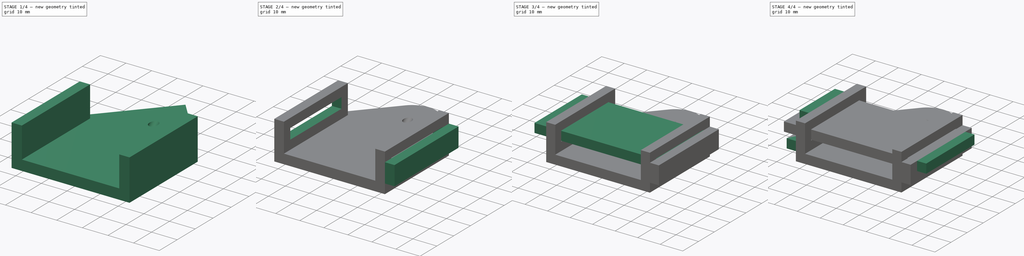
[diagram: build sequence overview — one tinted view per stage of 4, left to right]
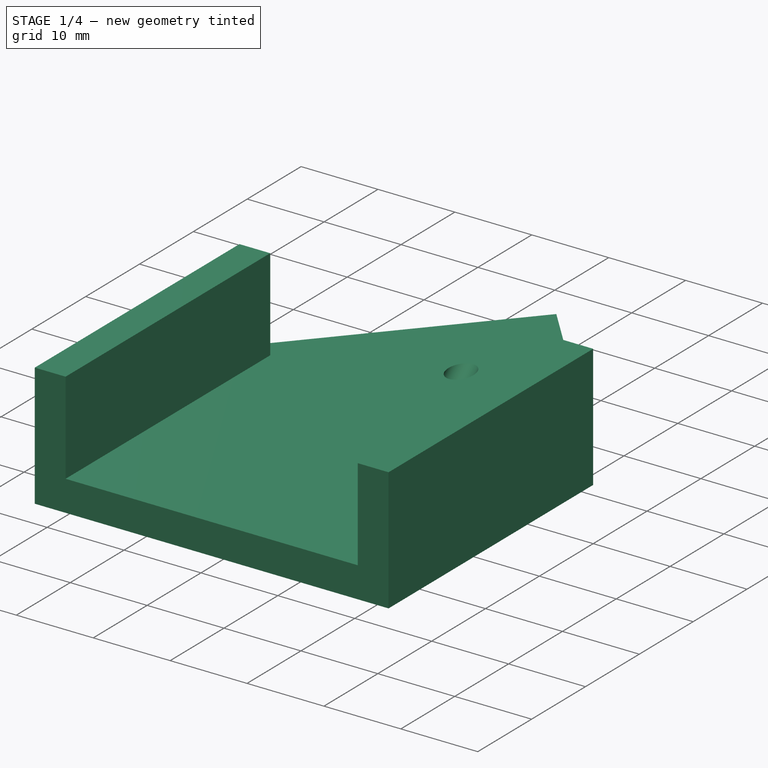
[diagram: stage 1 of 4 — iso view after this stage's code; geometry added in this stage tinted green]
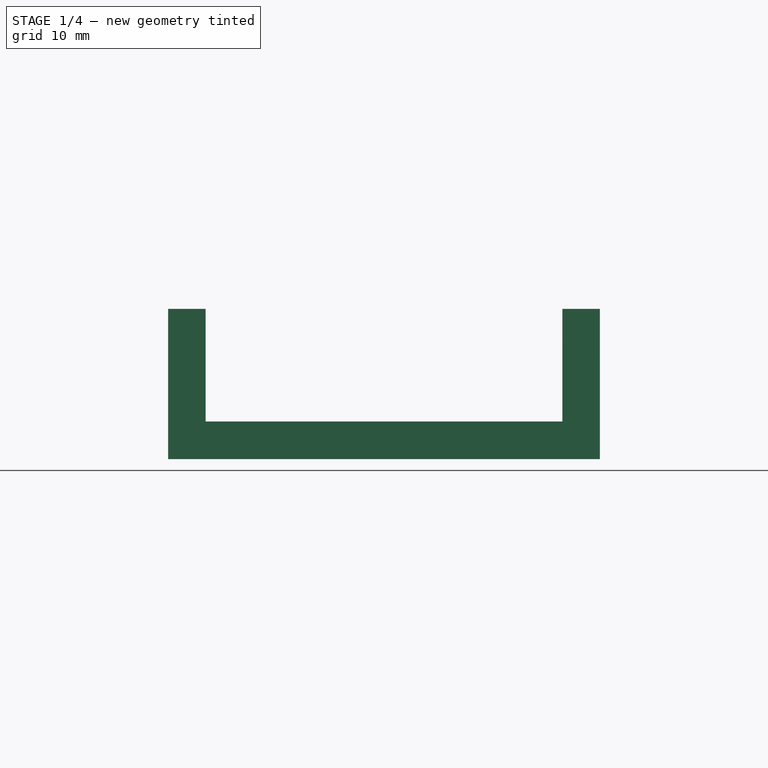
[diagram: stage 1 of 4 — front view after this stage's code; geometry added in this stage tinted green]
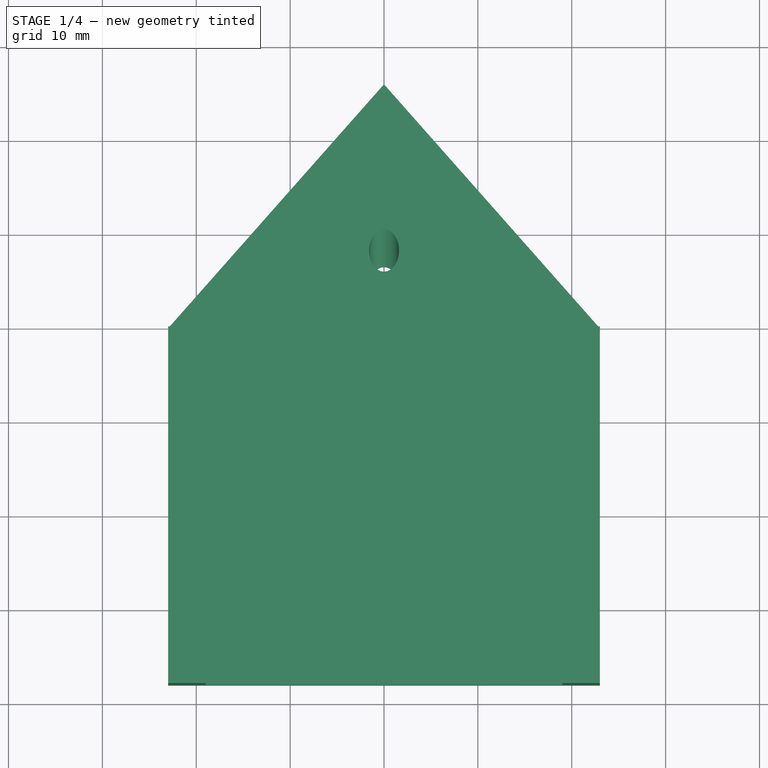
[diagram: stage 1 of 4 — top view after this stage's code; geometry added in this stage tinted green]
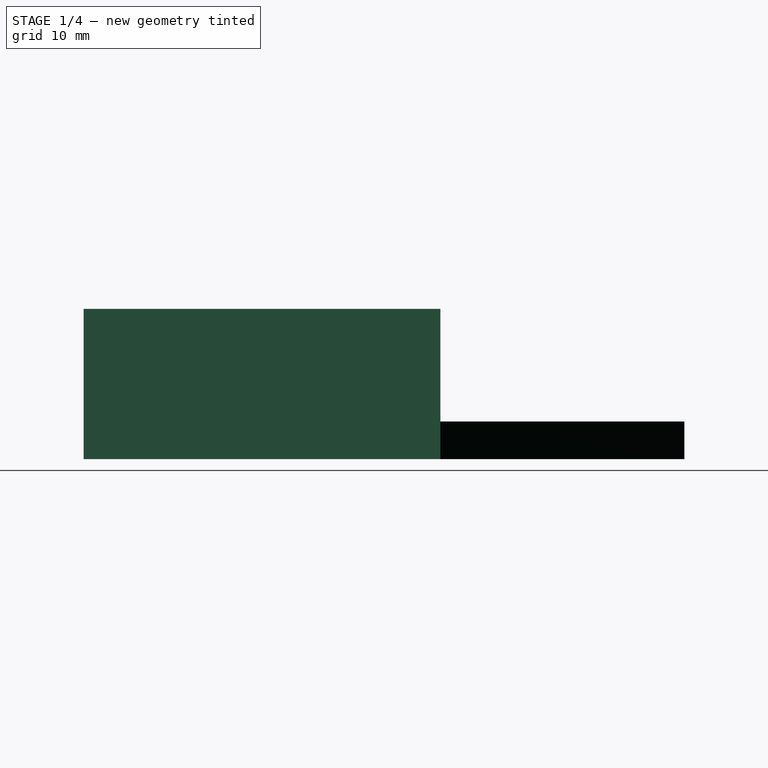
[diagram: stage 1 of 4 — right view after this stage's code; geometry added in this stage tinted green]
FCSTD DOCUMENT  (FreeCAD 0.20R29177 (Git))
Label: mom_holder_mount
License: All rights reserved
LicenseURL: http://en.wikipedia.org/wiki/All_rights_reserved
objects: Sketcher::SketchObject×10, PartDesign::Pad×7, PartDesign::Pocket×3, PartDesign::Body×3, Spreadsheet::Sheet×1, PartDesign::Fillet×1
note: 35 computed .brp shape members not serialized (recipe doc carries the construction recipe); baked Part::Feature solids carry a one-line shape summary decoded from their .brp

FEATURE [Sketcher::SketchObject] Sketch  label="Base Body Pad Sketch"
  FullyConstrained = true
  MapMode = 5
  Support = -> [XY_Plane]
  expr: Constraints[25] = <<$params>>.hook_width
  expr: Constraints[26] = <<$params>>.padding
  expr: Constraints[36] = <<$params>>.padding
  expr: Constraints[38] = <<$params>>.hook_length
  sketch-geometry (14):
    g0: LineSegment StartX=-23 StartY=-38 StartZ=0 EndX=-23 EndY=0 EndZ=0
    g1: LineSegment StartX=-23 StartY=0 StartZ=0 EndX=0 EndY=26 EndZ=0
    g2: LineSegment StartX=0 StartY=26 StartZ=0 EndX=23 EndY=0 EndZ=0
    g3: LineSegment StartX=0 StartY=26 StartZ=0 EndX=0 EndY=0 EndZ=0
    g4: LineSegment StartX=-23 StartY=0 StartZ=0 EndX=0 EndY=0 EndZ=0
    g5: LineSegment StartX=0 StartY=0 StartZ=0 EndX=23 EndY=0 EndZ=0
    g6: LineSegment StartX=-23 StartY=-4 StartZ=0 EndX=23 EndY=-4 EndZ=0
    g7: LineSegment StartX=-23 StartY=-34 StartZ=0 EndX=23 EndY=-34 EndZ=0
    g8: LineSegment StartX=23 StartY=0 StartZ=0 EndX=23 EndY=-4 EndZ=0
    g9: LineSegment StartX=23 StartY=-4 StartZ=0 EndX=23 EndY=-34 EndZ=0
    g10: LineSegment StartX=23 StartY=-34 StartZ=0 EndX=23 EndY=-38 EndZ=0
    g11: LineSegment StartX=-23 StartY=-38 StartZ=0 EndX=-19 EndY=-38 EndZ=0
    g12: LineSegment StartX=23 StartY=-38 StartZ=0 EndX=19 EndY=-38 EndZ=0
    g13: LineSegment StartX=-19 StartY=-38 StartZ=0 EndX=19 EndY=-38 EndZ=0
  constraints (39):
    c: Vertical(g0)
    c: Coincident(g2,g1)
    c: Coincident(g3,g1)
    c: Vertical(g3)
    c: Coincident(g4,g0)
    c: Coincident(g4,g3)
    c: Horizontal(g4)
    c: Coincident(g5,g3)
    c: Horizontal(g5)
    c: Coincident(g0,g1)
    c: Equal(g5,g4)
    c: Coincident(g3,g-1)
    c: PointOnObject(g6,g0)
    c: Horizontal(g6)
    c: PointOnObject(g7,g0)
    c: Horizontal(g7)
    c: Coincident(g8,g2)
    c: Coincident(g8,g6)
    c: Vertical(g8)
    c: Coincident(g9,g8)
    c: Coincident(g9,g7)
    c: Vertical(g9)
    c: Coincident(g10,g9)
    c: Equal(g8,g10)
    c: DistanceY(g3,g3) = 26
    c: DistanceY(g9,g9) = 30
    c: DistanceY(g8,g8) = 4
    c: Coincident(g2,g5)
    c: Vertical(g10)
    c: Coincident(g11,g0)
    c: Horizontal(g11)
    c: Coincident(g12,g10)
    c: Horizontal(g12)
    c: Coincident(g13,g11)
    c: Coincident(g13,g12)
    c: Horizontal(g13)
    c: DistanceX(g11,g11) = 4
    c: Equal(g12,g11)
    c: DistanceX(g13,g13) = 38
FEATURE [PartDesign::Pad] Pad  label="Base Body Pad"
  Direction = (0,0,1)
  Length = 4
  Length2 = 10
  Profile = -> Sketch
  ReferenceAxis = -> Sketch [N_Axis]
  Type = 0
  expr: Length = <<$params>>.padding
FEATURE [Spreadsheet::Sheet] Spreadsheet  label="$params"
  cells = A1=name; B1=value; A2=hook_width; B2(hook_width)=30; A3=hook_length; B3(hook_length)=38; A4=padding; B4(padding)=4
FEATURE [Sketcher::SketchObject] Sketch001  label="Base Body Nail Hole Sketch"
  AttachmentOffset = pos=(0,0.979185,10.364) rot=(1,0,0;-0.785398rad)
  ExternalGeometry = -> [Pad]
  FullyConstrained = true
  MapMode = 5
  Placement = pos=(0,0.979185,14.364) rot=(1,0,0;5.49779rad)
  Support = -> [Pad]
  sketch-geometry (2):
    g0: LineSegment StartX=0 StartY=25.0208 StartZ=0 EndX=0 EndY=0 EndZ=0
    g1: Circle CenterX=0 CenterY=12.5104 CenterZ=0 NormalX=0 NormalY=0 NormalZ=1 AngleXU=0 Radius=1.6
  constraints (4):
    c: Coincident(g0,g-3)
    c: Coincident(g0,g-1)
    c: Symmetric(g0,g0,g1)
    c: Diameter(g1) = 3.2
FEATURE [PartDesign::Pocket] Pocket  label="Base Body Nail Hole"
  BaseFeature = -> Pad
  Direction = (0,-0.707107,-0.707107)
  Length = 5
  Length2 = 5
  Profile = -> Sketch001
  ReferenceAxis = -> Sketch001 [N_Axis]
  Type = 1
FEATURE [Sketcher::SketchObject] Sketch002  label="Base Body Ext Pad Skletch"
  ExternalGeometry = -> [Pad]
  FullyConstrained = true
  MapMode = 5
  Placement = pos=(0,0,4) rot=(0,0,1;0rad)
  Support = -> [Pad]
  expr: Constraints[26] = <<$params>>.padding
  sketch-geometry (11):
    g0: LineSegment StartX=-23 StartY=0 StartZ=0 EndX=-19 EndY=0 EndZ=0
    g1: LineSegment StartX=-19 StartY=0 StartZ=0 EndX=-19 EndY=-38 EndZ=0
    g2: LineSegment StartX=-19 StartY=-38 StartZ=0 EndX=-23 EndY=-38 EndZ=0
    g3: LineSegment StartX=-23 StartY=-38 StartZ=0 EndX=-23 EndY=0 EndZ=0
    g4: LineSegment StartX=23 StartY=-38 StartZ=0 EndX=19 EndY=-38 EndZ=0
    g5: LineSegment StartX=19 StartY=-38 StartZ=0 EndX=19 EndY=0 EndZ=0
    g6: LineSegment StartX=19 StartY=0 StartZ=0 EndX=23 EndY=0 EndZ=0
    g7: LineSegment StartX=23 StartY=0 StartZ=0 EndX=23 EndY=-38 EndZ=0
    g8: GeomPoint X=-19 Y=0 Z=0
    g9: LineSegment StartX=-19 StartY=0 StartZ=0 EndX=19 EndY=0 EndZ=0
    g10: LineSegment StartX=19 StartY=-38 StartZ=0 EndX=-19 EndY=-38 EndZ=0
  constraints (27):
    c: Coincident(g0,g1)
    c: Coincident(g1,g2)
    c: Coincident(g2,g3)
    c: Coincident(g3,g0)
    c: Horizontal(g0)
    c: Horizontal(g2)
    c: Vertical(g1)
    c: Vertical(g3)
    c: Coincident(g0,g-3)
    c: Coincident(g4,g5)
    c: Coincident(g5,g6)
    c: Coincident(g6,g7)
    c: Coincident(g7,g4)
    c: Horizontal(g4)
    c: Horizontal(g6)
    c: Vertical(g5)
    c: Vertical(g7)
    c: Coincident(g4,g-4)
    c: Coincident(g8,g0)
    c: Coincident(g9,g0)
    c: Coincident(g9,g5)
    c: Horizontal(g9)
    c: Coincident(g10,g4)
    c: Coincident(g10,g1)
    c: Horizontal(g10)
    c: Equal(g2,g4)
    c: DistanceX(g0,g0) = 4
FEATURE [PartDesign::Pad] Pad001  label="Base Body Ext Pad"
  BaseFeature = -> Pocket
  Direction = (0,0,1)
  Length = 12
  Length2 = 10
  Profile = -> Sketch002
  ReferenceAxis = -> Sketch002 [N_Axis]
  Type = 0
  expr: Length = <<$params>>.padding * 3
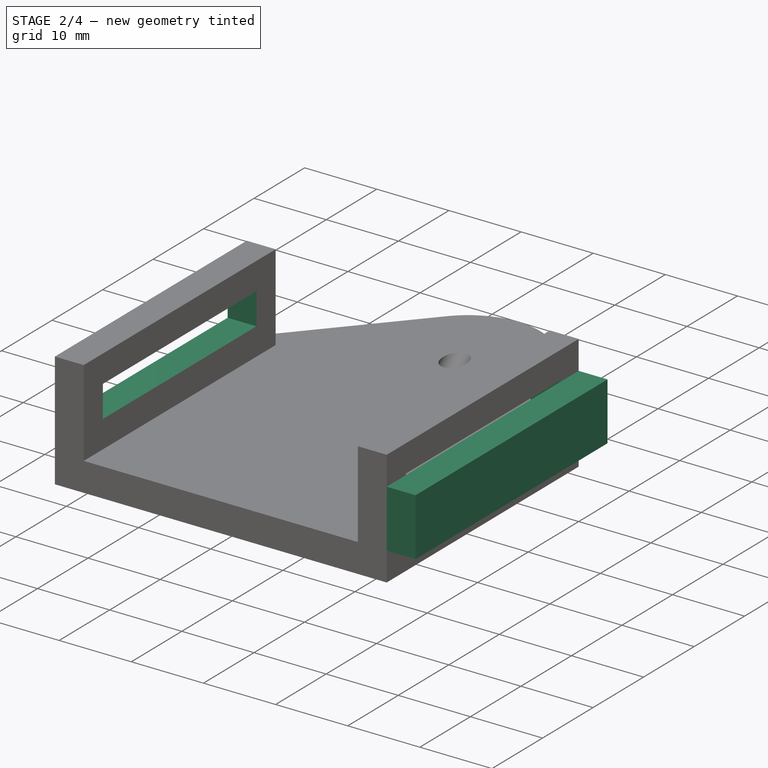
[diagram: stage 2 of 4 — iso view after this stage's code; geometry added in this stage tinted green]
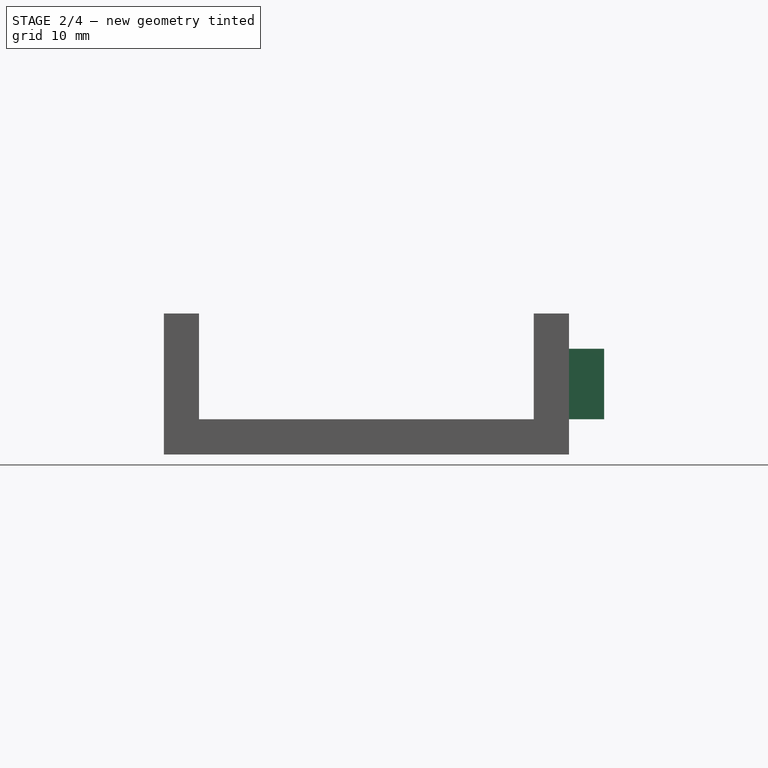
[diagram: stage 2 of 4 — front view after this stage's code; geometry added in this stage tinted green]
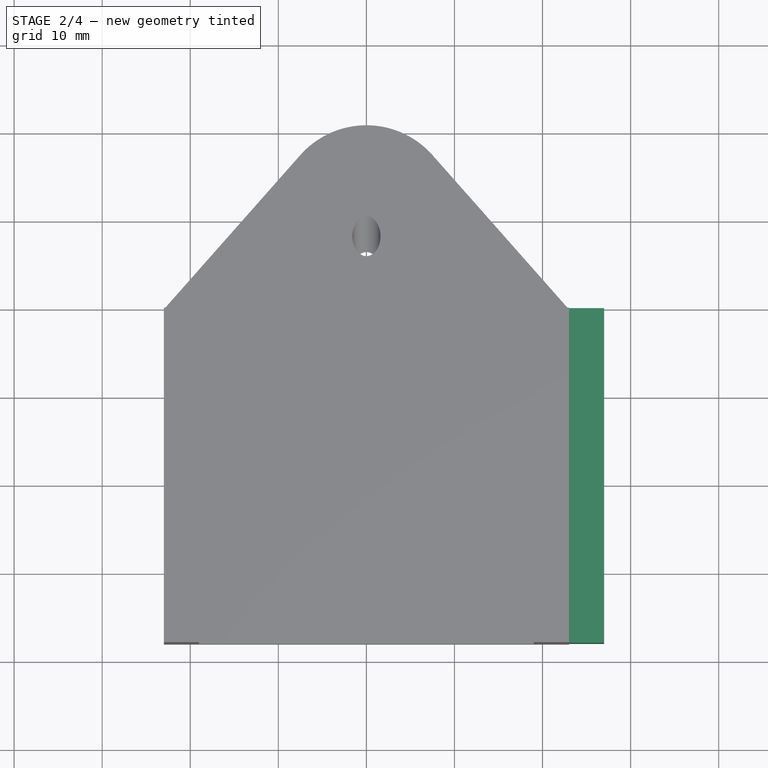
[diagram: stage 2 of 4 — top view after this stage's code; geometry added in this stage tinted green]
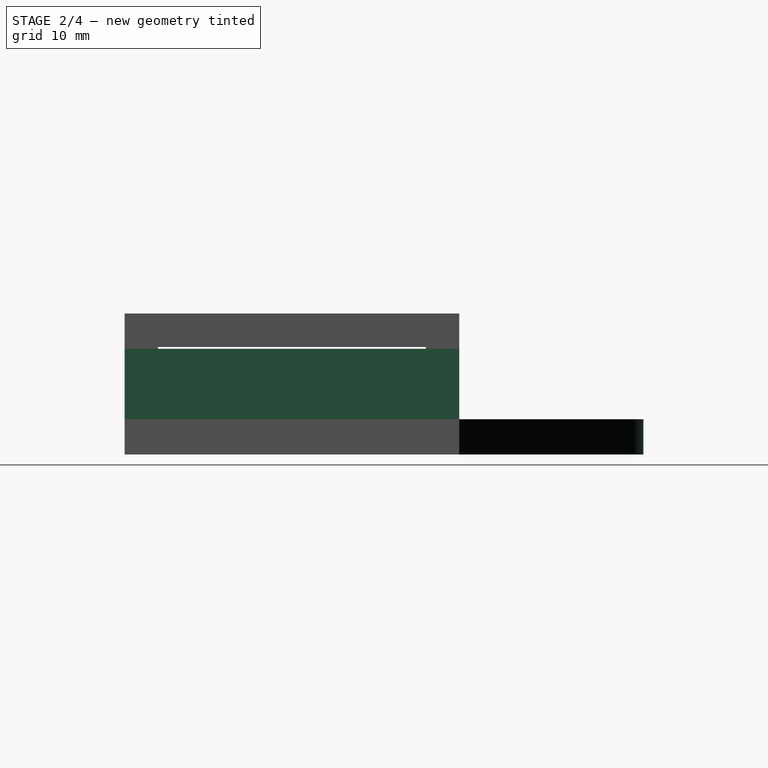
[diagram: stage 2 of 4 — right view after this stage's code; geometry added in this stage tinted green]
FEATURE [Sketcher::SketchObject] Sketch003  label="Basy Body Ext Cut-Thru Sketch"
  ExternalGeometry = -> [Pad001]
  FullyConstrained = true
  MapMode = 5
  Placement = pos=(-23,0,0) rot=(0.57735,-0.57735,-0.57735;2.0944rad)
  Support = -> [Pad001]
  expr: Constraints[31] = <<$params>>.padding - 0.2
  sketch-geometry (12):
    g0: LineSegment StartX=3.8 StartY=12.2 StartZ=0 EndX=34.2 EndY=12.2 EndZ=0
    g1: LineSegment StartX=34.2 StartY=12.2 StartZ=0 EndX=34.2 EndY=7.8 EndZ=0
    g2: LineSegment StartX=34.2 StartY=7.8 StartZ=0 EndX=3.8 EndY=7.8 EndZ=0
    g3: LineSegment StartX=3.8 StartY=7.8 StartZ=0 EndX=3.8 EndY=12.2 EndZ=0
    g4: LineSegment StartX=3.8 StartY=12.2 StartZ=0 EndX=0 EndY=12.2 EndZ=0
    g5: LineSegment StartX=0 StartY=12.2 StartZ=0 EndX=0 EndY=16 EndZ=0
    g6: LineSegment StartX=0 StartY=16 StartZ=0 EndX=3.8 EndY=16 EndZ=0
    g7: LineSegment StartX=3.8 StartY=16 StartZ=0 EndX=3.8 EndY=12.2 EndZ=0
    g8: LineSegment StartX=34.2 StartY=7.8 StartZ=0 EndX=38 EndY=7.8 EndZ=0
    g9: LineSegment StartX=38 StartY=7.8 StartZ=0 EndX=38 EndY=4 EndZ=0
    g10: LineSegment StartX=38 StartY=4 StartZ=0 EndX=34.2 EndY=4 EndZ=0
    g11: LineSegment StartX=34.2 StartY=4 StartZ=0 EndX=34.2 EndY=7.8 EndZ=0
  constraints (32):
    c: Coincident(g0,g1)
    c: Coincident(g1,g2)
    c: Coincident(g2,g3)
    c: Coincident(g3,g0)
    c: Horizontal(g0)
    c: Horizontal(g2)
    c: Vertical(g1)
    c: Vertical(g3)
    c: Coincident(g4,g5)
    c: Coincident(g5,g6)
    c: Coincident(g6,g7)
    c: Coincident(g7,g4)
    c: Horizontal(g4)
    c: Horizontal(g6)
    c: Vertical(g5)
    c: Vertical(g7)
    c: Coincident(g4,g0)
    c: Coincident(g5,g-3)
    c: Coincident(g8,g9)
    c: Coincident(g9,g10)
    c: Coincident(g10,g11)
    c: Coincident(g11,g8)
    c: Horizontal(g8)
    c: Horizontal(g10)
    c: Vertical(g9)
    c: Vertical(g11)
    c: Coincident(g8,g1)
    c: Coincident(g9,g-4)
    c: Equal(g7,g6)
    c: Equal(g6,g11)
    c: Equal(g11,g10)
    c: DistanceY(g5,g5) = 3.8
FEATURE [PartDesign::Pocket] Pocket001  label="Basy Body Ext Cut-Thru"
  BaseFeature = -> Pad001
  Direction = (1,0,0)
  Length = 5
  Length2 = 5
  Profile = -> Sketch003
  ReferenceAxis = -> Sketch003 [N_Axis]
  Type = 1
FEATURE [Sketcher::SketchObject] Sketch004  label="Pin Base Sketch"
  FullyConstrained = true
  MapMode = 5
  Support = -> [XY_Plane001]
  expr: Constraints[10] = <<$params>>.padding
  expr: Constraints[11] = <<$params>>.hook_length / 2 + <<$params>>.padding
  expr: Constraints[9] = <<$params>>.hook_width + <<$params>>.padding * 2
  sketch-geometry (4):
    g0: LineSegment StartX=27 StartY=0 StartZ=0 EndX=23 EndY=0 EndZ=0
    g1: LineSegment StartX=23 StartY=0 StartZ=0 EndX=23 EndY=-38 EndZ=0
    g2: LineSegment StartX=23 StartY=-38 StartZ=0 EndX=27 EndY=-38 EndZ=0
    g3: LineSegment StartX=27 StartY=-38 StartZ=0 EndX=27 EndY=0 EndZ=0
  constraints (12):
    c: Coincident(g0,g1)
    c: Coincident(g1,g2)
    c: Coincident(g2,g3)
    c: Coincident(g3,g0)
    c: Horizontal(g0)
    c: Horizontal(g2)
    c: Vertical(g1)
    c: Vertical(g3)
    c: PointOnObject(g0,g-1)
    c: DistanceY(g3,g3) = 38
    c: DistanceX(g2,g2) = 4
    c: DistanceX(g-1,g0) = 23
FEATURE [PartDesign::Pad] Pad002  label="Pin Base"
  Direction = (0,0,1)
  Length = 12
  Length2 = -4
  Profile = -> Sketch004
  ReferenceAxis = -> Sketch004 [N_Axis]
  Type = 4
  expr: Length = <<$params>>.padding * 3
  expr: Length2 = -<<$params>>.padding
FEATURE [PartDesign::Body] Body001  label="Pin"
  Group = -> [Sketch004,Pad002,Sketch005,Pad003,Sketch006,Pocket002,Sketch009,Pad006]
  Origin = -> Origin001
  Tip = -> Pad006
FEATURE [PartDesign::Fillet] Fillet
  Base = -> Pocket001 [Edge8]
  BaseFeature = -> Pocket001
  Radius = 10
  SupportTransform = false
  UseAllEdges = false
FEATURE [PartDesign::Body] Body  label="Base Body"
  Group = -> [Sketch,Pad,Sketch001,Pocket,Sketch002,Pad001,Sketch003,Pocket001,Fillet]
  Origin = -> Origin
  Tip = -> Fillet
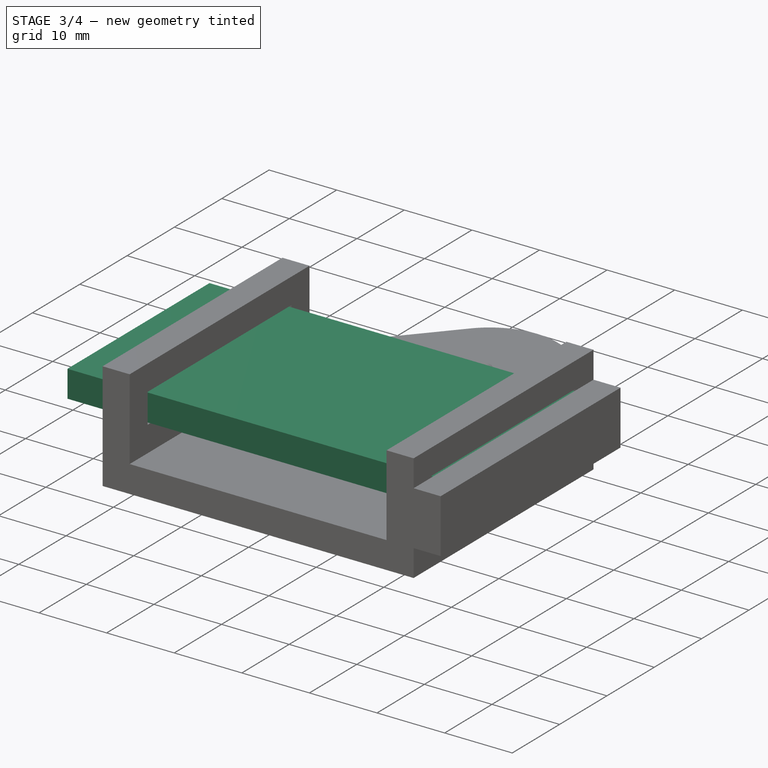
[diagram: stage 3 of 4 — iso view after this stage's code; geometry added in this stage tinted green]
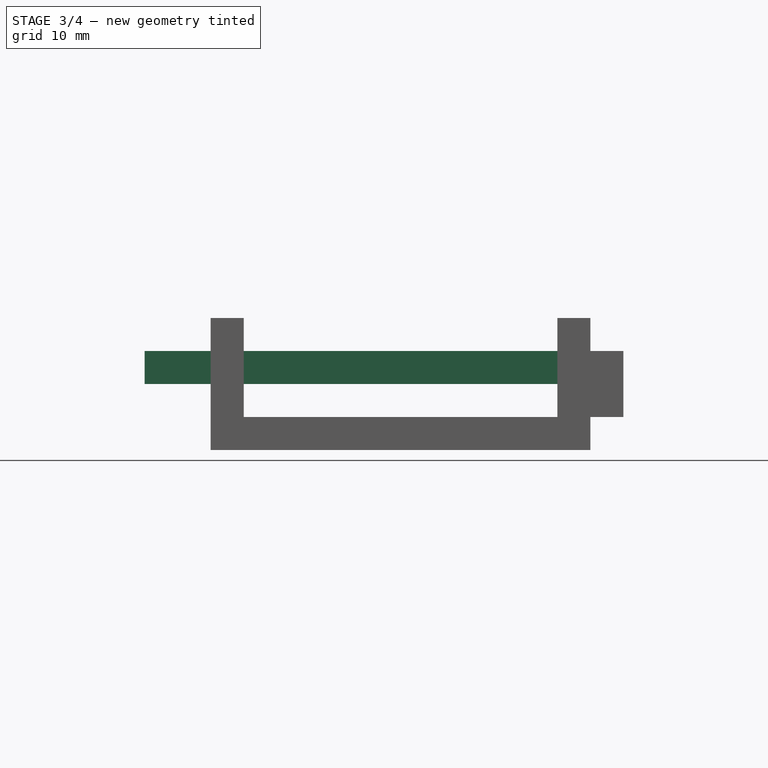
[diagram: stage 3 of 4 — front view after this stage's code; geometry added in this stage tinted green]
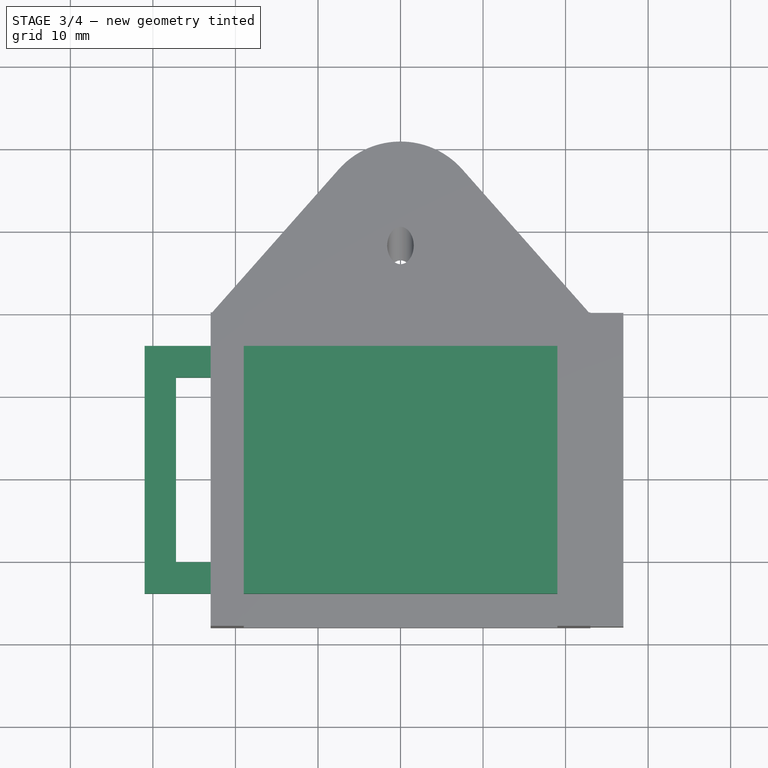
[diagram: stage 3 of 4 — top view after this stage's code; geometry added in this stage tinted green]
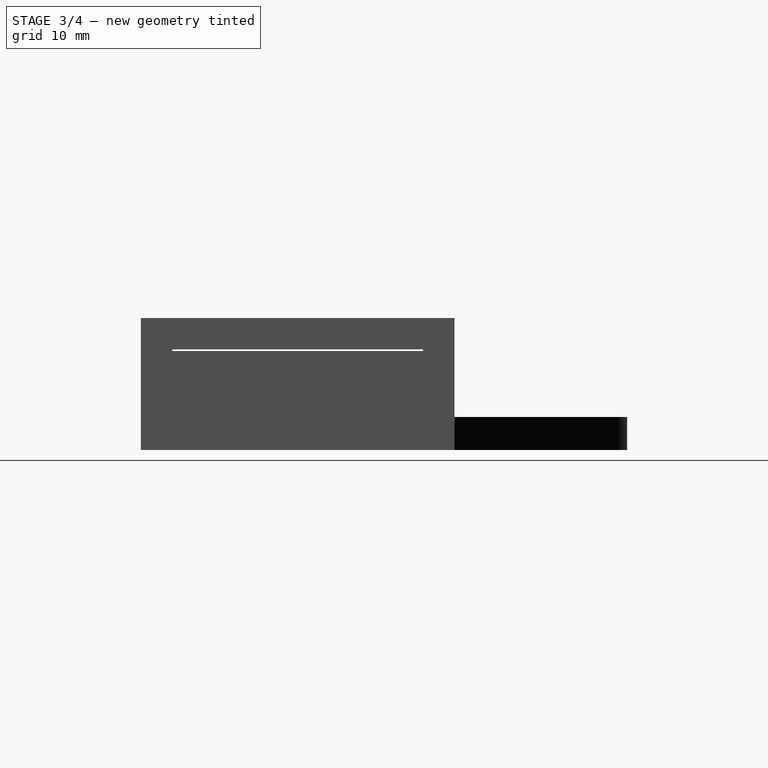
[diagram: stage 3 of 4 — right view after this stage's code; geometry added in this stage tinted green]
FEATURE [Sketcher::SketchObject] Sketch005  label="Pin Ext Sketch"
  ExternalGeometry = -> [Pad002]
  FullyConstrained = true
  MapMode = 5
  Placement = pos=(23,0,0) rot=(0.57735,-0.57735,-0.57735;2.0944rad)
  Support = -> [Pad002]
  expr: Constraints[14] = <<$params>>.padding
  expr: Constraints[15] = <<$params>>.padding
  sketch-geometry (6):
    g0: LineSegment StartX=4 StartY=12 StartZ=0 EndX=34 EndY=12 EndZ=0
    g1: LineSegment StartX=34 StartY=12 StartZ=0 EndX=34 EndY=8 EndZ=0
    g2: LineSegment StartX=34 StartY=8 StartZ=0 EndX=4 EndY=8 EndZ=0
    g3: LineSegment StartX=4 StartY=8 StartZ=0 EndX=4 EndY=12 EndZ=0
    g4: LineSegment StartX=0 StartY=12 StartZ=0 EndX=4 EndY=12 EndZ=0
    g5: LineSegment StartX=34 StartY=12 StartZ=0 EndX=38 EndY=12 EndZ=0
  constraints (16):
    c: Coincident(g0,g1)
    c: Coincident(g1,g2)
    c: Coincident(g2,g3)
    c: Coincident(g3,g0)
    c: Horizontal(g0)
    c: Horizontal(g2)
    c: Vertical(g1)
    c: Vertical(g3)
    c: Coincident(g4,g-3)
    c: Coincident(g4,g0)
    c: Horizontal(g4)
    c: Coincident(g5,g0)
    c: Coincident(g5,g-4)
    c: Equal(g5,g4)
    c: DistanceX(g4,g4) = 4
    c: DistanceY(g3,g3) = 4
FEATURE [PartDesign::Pad] Pad003  label="Pin Ext"
  BaseFeature = -> Pad002
  Direction = (-1,0,0)
  Length = 54
  Length2 = 10
  Profile = -> Sketch005
  ReferenceAxis = -> Sketch005 [N_Axis]
  Type = 0
  expr: Length = <<$params>>.hook_length + <<$params>>.padding * 4
FEATURE [Sketcher::SketchObject] Sketch006  label="Pin Ext Pocket Sketch"
  ExternalGeometry = -> [Pad003]
  FullyConstrained = true
  MapMode = 5
  Placement = pos=(0,0,12) rot=(0,0,1;0rad)
  Support = -> [Pad003]
  expr: Constraints[10] = <<$params>>.padding * 2
  expr: Constraints[25] = <<$params>>.padding - 0.2
  expr: Constraints[26] = <<$params>>.padding - 0.2
  sketch-geometry (10):
    g0: LineSegment StartX=-23 StartY=-7.8 StartZ=0 EndX=-27.2 EndY=-7.8 EndZ=0
    g1: LineSegment StartX=-27.2 StartY=-7.8 StartZ=0 EndX=-27.2 EndY=-30.2 EndZ=0
    g2: LineSegment StartX=-27.2 StartY=-30.2 StartZ=0 EndX=-23 EndY=-30.2 EndZ=0
    g3: LineSegment StartX=-23 StartY=-30.2 StartZ=0 EndX=-23 EndY=-7.8 EndZ=0
    g4: LineSegment StartX=-31 StartY=-4 StartZ=0 EndX=-23 EndY=-4 EndZ=0
    g5: LineSegment StartX=-31 StartY=-4 StartZ=0 EndX=-31 EndY=-7.8 EndZ=0
    g6: LineSegment StartX=-31 StartY=-7.8 StartZ=0 EndX=-27.2 EndY=-7.8 EndZ=0
    g7: LineSegment StartX=-31 StartY=-34 StartZ=0 EndX=-31 EndY=-30.2 EndZ=0
    g8: LineSegment StartX=-31 StartY=-30.2 StartZ=0 EndX=-27.2 EndY=-30.2 EndZ=0
    g9: LineSegment StartX=-23 StartY=-4 StartZ=0 EndX=-23 EndY=-7.8 EndZ=0
  constraints (27):
    c: Coincident(g0,g1)
    c: Coincident(g1,g2)
    c: Coincident(g2,g3)
    c: Coincident(g3,g0)
    c: Horizontal(g0)
    c: Horizontal(g2)
    c: Vertical(g1)
    c: Vertical(g3)
    c: Coincident(g4,g-3)
    c: Horizontal(g4)
    c: DistanceX(g4,g4) = 8
    c: Coincident(g5,g4)
    c: Vertical(g5)
    c: Coincident(g6,g5)
    c: Coincident(g6,g0)
    c: Horizontal(g6)
    c: Coincident(g7,g-4)
    c: Coincident(g8,g7)
    c: Coincident(g8,g1)
    c: Coincident(g9,g4)
    c: Coincident(g9,g0)
    c: Vertical(g9)
    c: Horizontal(g8)
    c: Vertical(g7)
    c: Equal(g5,g7)
    c: DistanceY(g5,g5) = 3.8
    c: DistanceX(g6,g6) = 3.8
FEATURE [PartDesign::Pocket] Pocket002  label="Pin Ext Pocket"
  BaseFeature = -> Pad003
  Direction = (0,0,-1)
  Length = 5
  Length2 = 5
  Profile = -> Sketch006
  ReferenceAxis = -> Sketch006 [N_Axis]
  Type = 2
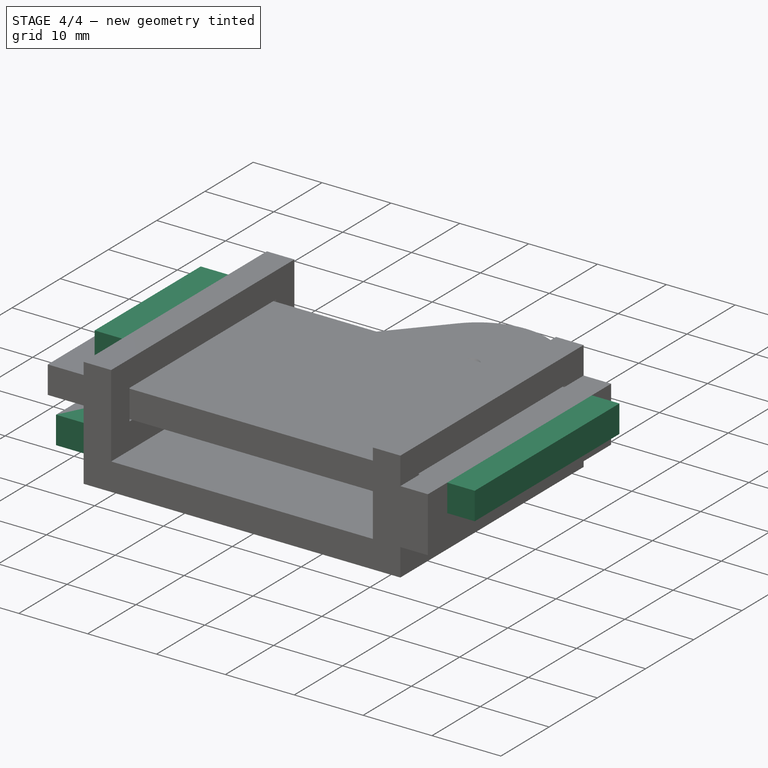
[diagram: stage 4 of 4 — iso view after this stage's code; geometry added in this stage tinted green]
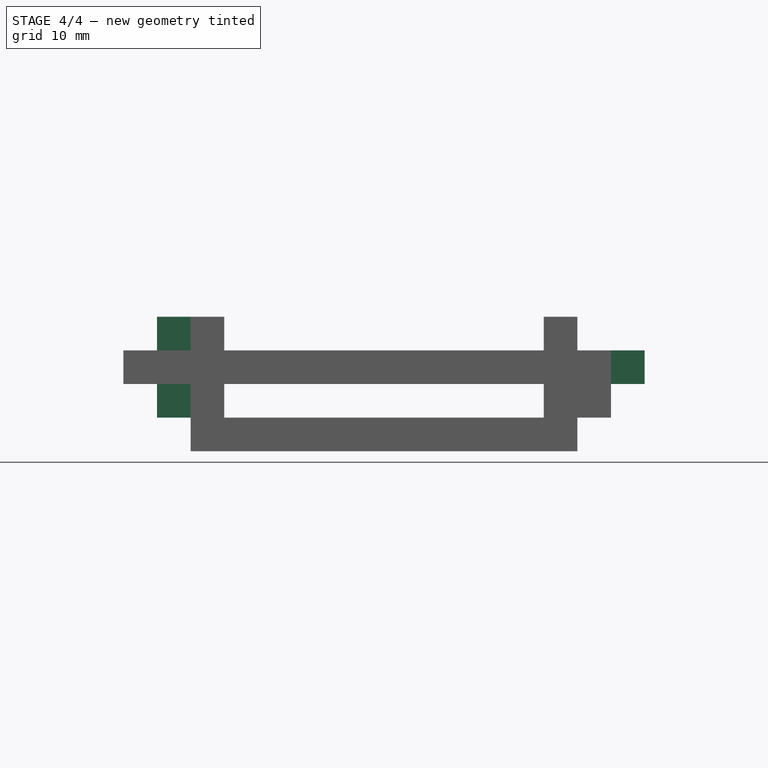
[diagram: stage 4 of 4 — front view after this stage's code; geometry added in this stage tinted green]
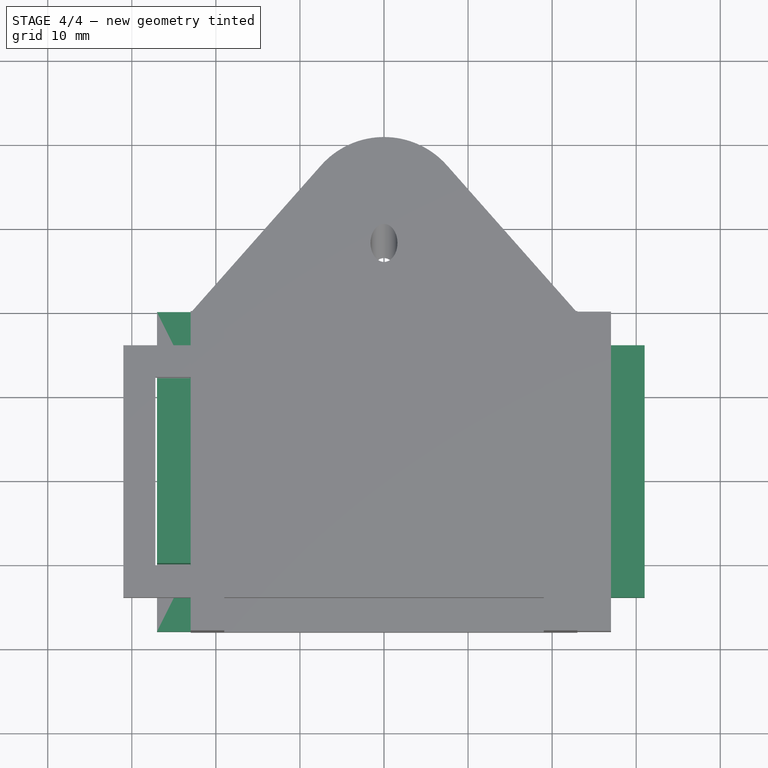
[diagram: stage 4 of 4 — top view after this stage's code; geometry added in this stage tinted green]
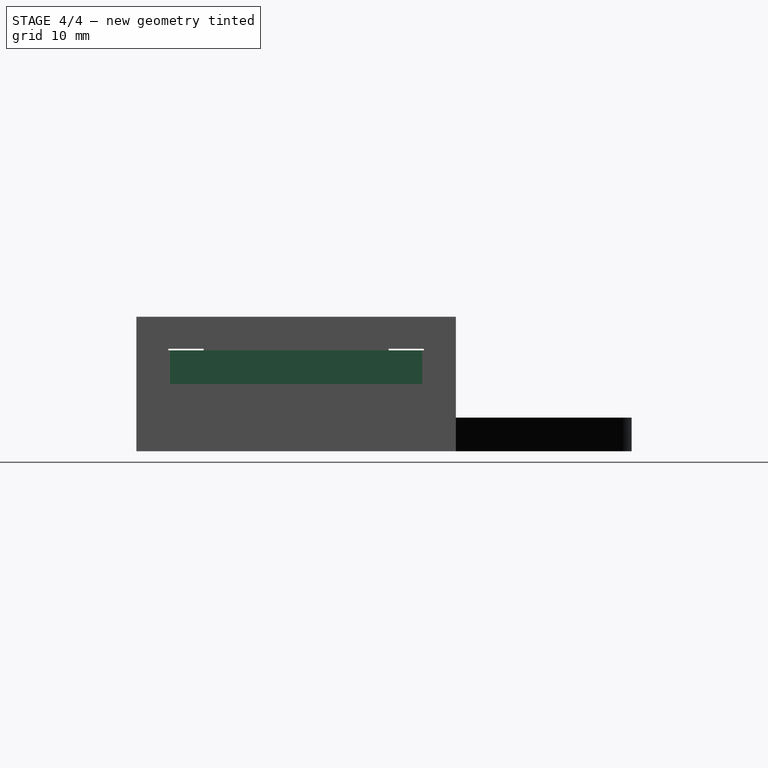
[diagram: stage 4 of 4 — right view after this stage's code; geometry added in this stage tinted green]
FEATURE [Sketcher::SketchObject] Sketch007  label="Locking Pin Base Sketch"
  FullyConstrained = true
  MapMode = 5
  Placement = pos=(0,0,0) rot=(1,0,0;1.5708rad)
  Support = -> [XZ_Plane002]
  expr: Constraints[15] = <<$params>>.padding
  expr: Constraints[16] = <<$params>>.hook_length / 2 + <<$params>>.padding
  expr: Constraints[8] = <<$params>>.padding * 3
  expr: Constraints[9] = <<$params>>.padding
  sketch-geometry (6):
    g0: LineSegment StartX=-27 StartY=16 StartZ=0 EndX=-23 EndY=16 EndZ=0
    g1: LineSegment StartX=-23 StartY=16 StartZ=0 EndX=-23 EndY=4 EndZ=0
    g2: LineSegment StartX=-23 StartY=4 StartZ=0 EndX=-27 EndY=4 EndZ=0
    g3: LineSegment StartX=-27 StartY=4 StartZ=0 EndX=-27 EndY=16 EndZ=0
    g4: LineSegment StartX=0 StartY=0 StartZ=0 EndX=-23 EndY=0 EndZ=0
    g5: LineSegment StartX=-23 StartY=4 StartZ=0 EndX=-23 EndY=0 EndZ=0
  constraints (17):
    c: Coincident(g0,g1)
    c: Coincident(g1,g2)
    c: Coincident(g2,g3)
    c: Coincident(g3,g0)
    c: Horizontal(g0)
    c: Horizontal(g2)
    c: Vertical(g1)
    c: Vertical(g3)
    c: DistanceY(g3,g3) = 12
    c: DistanceX(g0,g0) = 4
    c: Coincident(g4,g-1)
    c: PointOnObject(g4,g-1)
    c: Coincident(g5,g1)
    c: Coincident(g5,g4)
    c: Vertical(g5)
    c: DistanceY(g5,g5) = 4
    c: DistanceX(g4,g4) = 23
FEATURE [PartDesign::Pad] Pad004  label="Locking Pin Base"
  Direction = (0,-1,2e-16)
  Length = 30
  Length2 = -8
  Placement = pos=(0,0,0) rot=(1,0,0;1.5708rad)
  Profile = -> Sketch007
  ReferenceAxis = -> Sketch007 [N_Axis]
  Type = 4
  expr: Length = <<$params>>.hook_width
  expr: Length2 = -<<$params>>.padding * 2
FEATURE [Sketcher::SketchObject] Sketch008  label="Locking Pin Top Ext Sketch"
  ExternalGeometry = -> [Pad004]
  FullyConstrained = true
  MapMode = 5
  Placement = pos=(0,-30,6.7e-15) rot=(1,0,0;1.5708rad)
  Support = -> [Pad004]
  expr: Constraints[10] = <<$params>>.padding
  sketch-geometry (4):
    g0: LineSegment StartX=-27 StartY=4 StartZ=0 EndX=-23 EndY=4 EndZ=0
    g1: LineSegment StartX=-23 StartY=4 StartZ=0 EndX=-23 EndY=8 EndZ=0
    g2: LineSegment StartX=-23 StartY=8 StartZ=0 EndX=-27 EndY=8 EndZ=0
    g3: LineSegment StartX=-27 StartY=8 StartZ=0 EndX=-27 EndY=4 EndZ=0
  constraints (11):
    c: Coincident(g0,g1)
    c: Coincident(g1,g2)
    c: Coincident(g2,g3)
    c: Coincident(g3,g0)
    c: Horizontal(g0)
    c: Horizontal(g2)
    c: Vertical(g1)
    c: Vertical(g3)
    c: Coincident(g0,g-3)
    c: Equal(g1,g2)
    c: DistanceX(g0,g0) = 4
FEATURE [PartDesign::Pad] Pad005  label="Locking Pin Top Ext"
  BaseFeature = -> Pad004
  Direction = (0,-1,2e-16)
  Length = 8
  Length2 = 30
  Placement = pos=(0,0,0) rot=(1,0,0;1.5708rad)
  Profile = -> Sketch008
  ReferenceAxis = -> Sketch008 [N_Axis]
  Refine = true
  Type = 4
  expr: Length = <<$params>>.padding * 2
  expr: Length2 = <<$params>>.hook_width
FEATURE [PartDesign::Body] Body002  label="Locking Pin"
  Group = -> [Sketch007,Pad004,Sketch008,Pad005]
  Origin = -> Origin002
  Tip = -> Pad005
FEATURE [Sketcher::SketchObject] Sketch009  label="Pin Ext Sym Pad Sketch"
  ExternalGeometry = -> [Pocket002]
  FullyConstrained = true
  MapMode = 5
  Placement = pos=(27,0,0) rot=(0.57735,0.57735,0.57735;2.0944rad)
  Support = -> [Pocket002]
  expr: Constraints[15] = <<$params>>.padding
  expr: Constraints[8] = <<$params>>.padding
  sketch-geometry (6):
    g0: LineSegment StartX=-34 StartY=12 StartZ=0 EndX=-4 EndY=12 EndZ=0
    g1: LineSegment StartX=-4 StartY=12 StartZ=0 EndX=-4 EndY=8 EndZ=0
    g2: LineSegment StartX=-4 StartY=8 StartZ=0 EndX=-34 EndY=8 EndZ=0
    g3: LineSegment StartX=-34 StartY=8 StartZ=0 EndX=-34 EndY=12 EndZ=0
    g4: LineSegment StartX=-34 StartY=12 StartZ=0 EndX=-38 EndY=12 EndZ=0
    g5: LineSegment StartX=-4 StartY=12 StartZ=0 EndX=0 EndY=12 EndZ=0
  constraints (16):
    c: Coincident(g0,g1)
    c: Coincident(g1,g2)
    c: Coincident(g2,g3)
    c: Coincident(g3,g0)
    c: Horizontal(g0)
    c: Horizontal(g2)
    c: Vertical(g1)
    c: Vertical(g3)
    c: DistanceY(g1,g1) = 4
    c: Coincident(g4,g0)
    c: Coincident(g4,g-3)
    c: Coincident(g5,g0)
    c: Coincident(g5,g-4)
    c: Equal(g4,g5)
    c: Horizontal(g4)
    c: DistanceX(g5,g5) = 4
FEATURE [PartDesign::Pad] Pad006  label="Pin Ext Sym Pad"
  BaseFeature = -> Pocket002
  Direction = (1,0,0)
  Length = 4
  Length2 = 10
  Profile = -> Sketch009
  ReferenceAxis = -> Sketch009 [N_Axis]
  Type = 0
  expr: Length = <<$params>>.padding
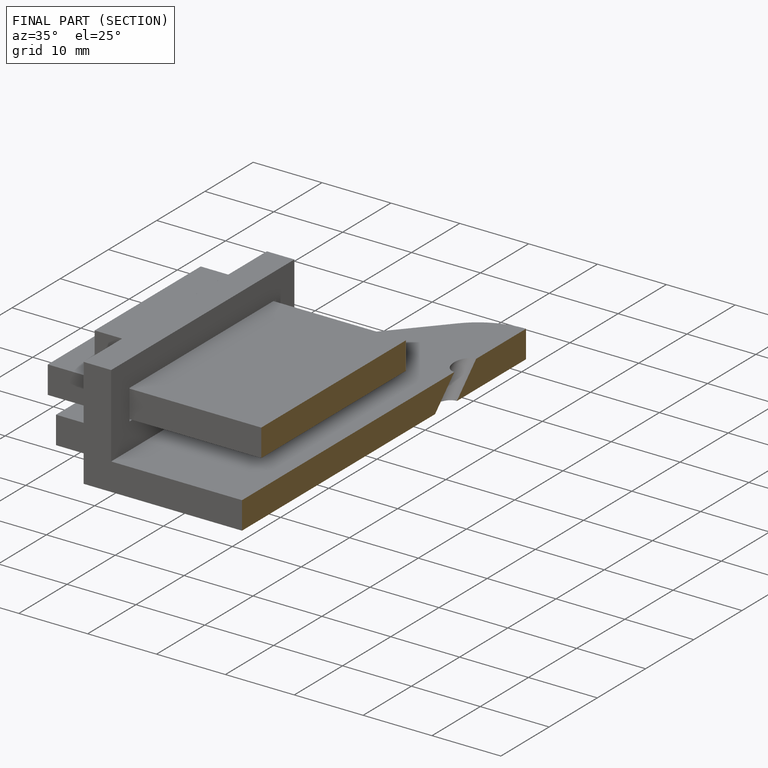
[diagram: finished part — half-section view (interior)]
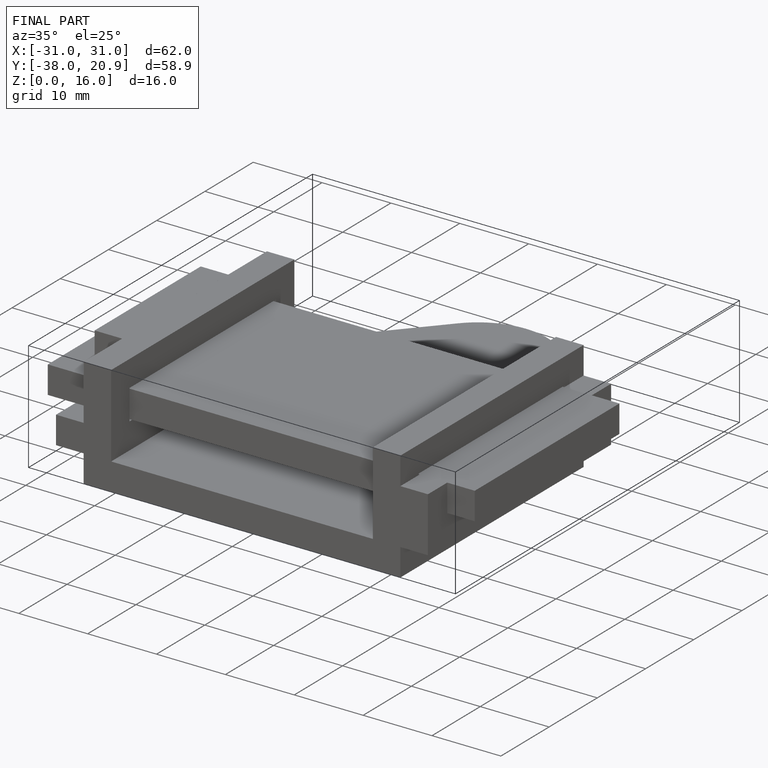
[diagram: finished part — iso view with bounding-box wireframe]
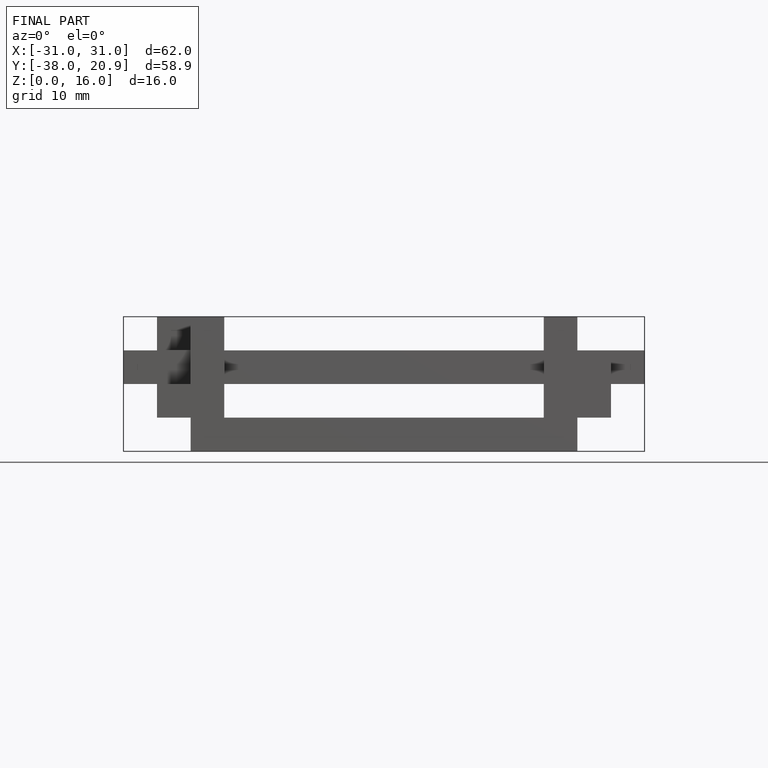
[diagram: finished part — front view with bounding-box wireframe]
